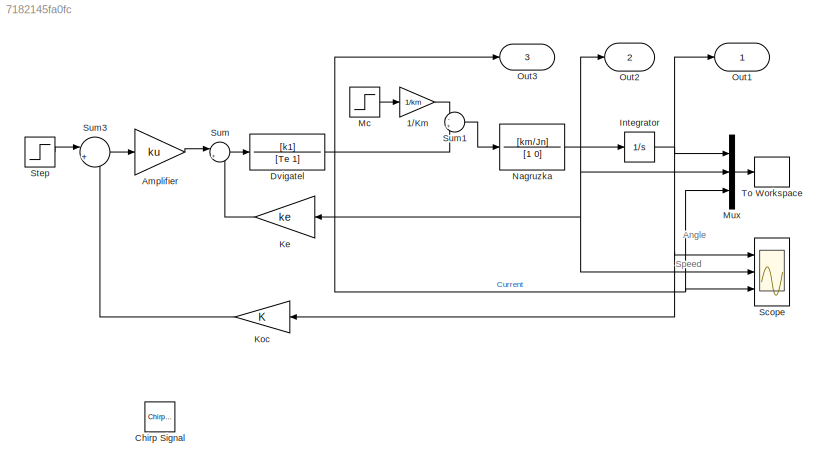
MODEL slx_7182145fa0fc
KIND model
CONFIG AbsTol = auto
CONFIG EnableMultiTasking = on
CONFIG FixedStep = auto
CONFIG MaxStep = auto
CONFIG MinStep = auto
CONFIG RelTol = 1e-3
CONFIG SampleTimeConstraint = Unconstrained
CONFIG SolverName = ode45
CONFIG StartTime = 0.0
CONFIG StopTime = 0.5
BLOCK [Gain] 1//Km
  Gain = 1/km
BLOCK [Gain] Amplifier
  Gain = ku
BLOCK [Reference] Chirp Signal  REF=simulink/Sources/Chirp Signal
  IOType = siggen
  Ports = [0, 1]
  SourceBlock = simulink/Sources/Chirp Signal
  SourceProductBaseCode = SL
  SourceType = chirp
BLOCK [TransferFcn] Dvigatel
  Denominator = [Te 1]
  Numerator = [k1]
BLOCK [Integrator] Integrator
  Ports = [1, 1]
BLOCK [Gain] Ke
  Gain = ke
BLOCK [Gain] Koc
BLOCK [Step] Mc
  After = 0
  SampleTime = 0
  Time = 0
BLOCK [Mux] Mux
  DisplayOption = bar
  Inputs = 3
  Ports = [3, 1]
BLOCK [TransferFcn] Nagruzka
  Denominator = [1 0]
  Numerator = [km/Jn]
BLOCK [Outport] Out1
  BusOutputAsStruct = on
  IconDisplay = Port number and signal name
BLOCK [Outport] Out2
  BusOutputAsStruct = on
  IconDisplay = Port number and signal name
  Port = 2
BLOCK [Outport] Out3
  BusOutputAsStruct = on
  IconDisplay = Port number and signal name
  Port = 3
BLOCK [Scope] Scope
  Floating = off
  NumInputPorts = 3
  Ports = [3]
  ScopeSpecificationString = Simulink.scopes.TimeScopeBlockCfg('CurrentConfiguration', extmgr.ConfigurationSet(extmgr.Configuration('Core','General UI',true,'FigureColor',[1 1 1]),extmgr.Configuration('Core','Source UI',true),extmgr.Configuration('Sources','WiredSimulink',true,'DataLoggingSaveFormat','StructureWithTime','DataLoggingDecimation','1'),extmgr.Configuration('Visuals','Time Domain',true,'TimeAxisLabels','All','Seri...<+3297ch>
BLOCK [Step] Step
  SampleTime = 0
  Time = 0
  VectorParams1D = off
  ZeroCross = off
BLOCK [Sum] Sum
  Inputs = |+-
  Ports = [2, 1]
BLOCK [Sum] Sum1
  Inputs = -+
  Ports = [2, 1]
BLOCK [Sum] Sum3
  Inputs = |+-
  Ports = [2, 1]
BLOCK [ToWorkspace] To Workspace
  MaxDataPoints = inf
  Ports = [1]
  SampleTime = 1e-5
  VariableName = out
ANNOTATION (root): Angle
ANNOTATION (root): Speed
LINE 1//Km:1 -> Sum1:1
LINE Amplifier:1 -> Sum:1
NET Dvigatel:1 -> Mux:3, Out3:1, Scope:3, Sum1:2
NET Integrator:1 -> Koc:1, Mux:1, Out1:1, Scope:1
LINE Ke:1 -> Sum:2
LINE Koc:1 -> Sum3:2
LINE Mc:1 -> 1//Km:1
LINE Mux:1 -> To Workspace:1
NET Nagruzka:1 -> Integrator:1, Ke:1, Mux:2, Out2:1, Scope:2
LINE Step:1 -> Sum3:1
LINE Sum1:1 -> Nagruzka:1
LINE Sum3:1 -> Amplifier:1
LINE Sum:1 -> Dvigatel:1
note: NET lines group one-source signal fan-out (src -> all destinations, sorted); 1:1 wires keep LINE
